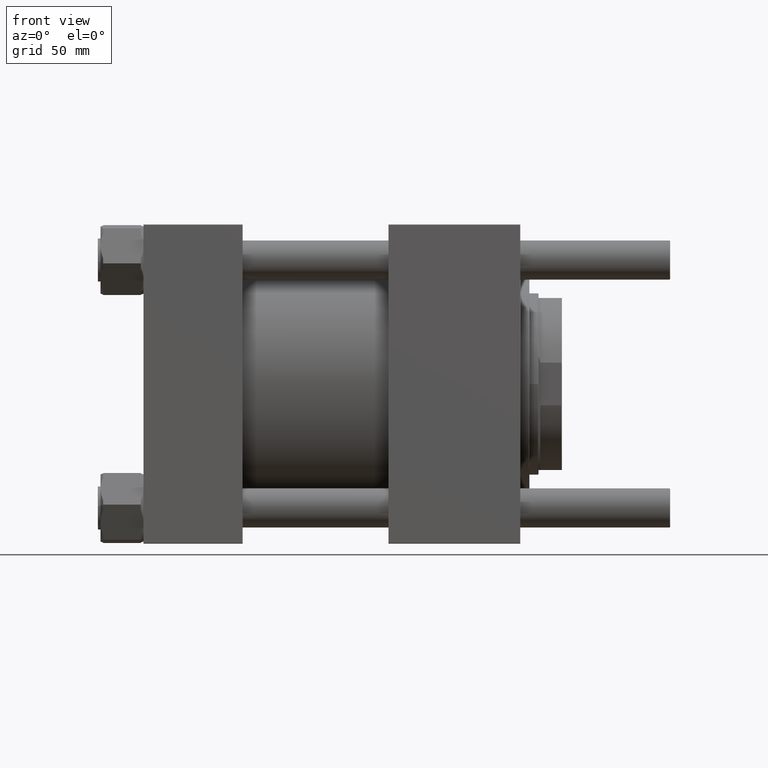
[diagram: clean part render]
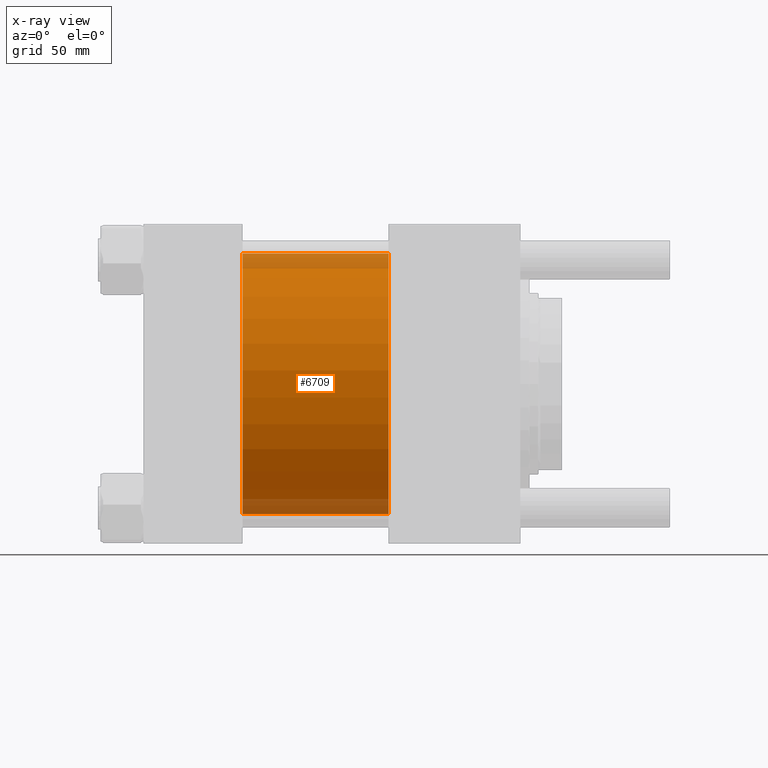
[diagram: x-ray — body ghosted, one internal face saturated and labeled with its STEP entity id]
A machine part, front view, then the same camera in x-ray: the body is ghosted and one INTERNAL B-rep face — a face not visible from any outside direction — is saturated and labeled: STEP entity #6709.
In plain terms, the highlighted cylindrical surface (partial cylindrical patch) has radius 100 mm, axis along (-1, -0, -0).
Its self-contained STEP definition (entity closure, byte-faithful):
#261 = VERTEX_POINT ( 'NONE', #8270 ) ;
#1730 = CARTESIAN_POINT ( 'NONE',  ( 188.0000000000000000, 9.644382777508321529E-15, -100.0000000000000000 ) ) ;
#3448 = DIRECTION ( 'NONE',  ( 1.000000000000000000, 0.000000000000000000, 0.000000000000000000 ) ) ;
#5511 = ORIENTED_EDGE ( 'NONE', *, *, #20193, .T. ) ;
#5540 = CARTESIAN_POINT ( 'NONE',  ( 76.00000000000000000, 9.644382777508321529E-15, -100.0000000000000000 ) ) ;
#6065 = CARTESIAN_POINT ( 'NONE',  ( 188.0000000000000000, 9.644382777508321529E-15, -100.0000000000000000 ) ) ;
#6709 = ADVANCED_FACE ( 'NONE', ( #7011 ), #51980, .F. ) ;
#7011 = FACE_OUTER_BOUND ( 'NONE', #18226, .T. ) ;
#8270 = CARTESIAN_POINT ( 'NONE',  ( 188.0000000000000000, -2.602085213965210642E-15, 100.0000000000000000 ) ) ;
#11464 = CARTESIAN_POINT ( 'NONE',  ( 76.00000000000000000, -2.602085213965210642E-15, 100.0000000000000000 ) ) ;
#11632 = ORIENTED_EDGE ( 'NONE', *, *, #15628, .F. ) ;
#12228 = DIRECTION ( 'NONE',  ( -1.000000000000000000, -0.000000000000000000, -0.000000000000000000 ) ) ;
#14499 = DIRECTION ( 'NONE',  ( 0.000000000000000000, 0.000000000000000000, -1.000000000000000000 ) ) ;
#15628 = EDGE_CURVE ( 'NONE', #261, #55386, #45542, .T. ) ;
#18226 = EDGE_LOOP ( 'NONE', ( #49856, #5511, #19923, #11632 ) ) ;
#19923 = ORIENTED_EDGE ( 'NONE', *, *, #49294, .F. ) ;
#20193 = EDGE_CURVE ( 'NONE', #20219, #43804, #23478, .T. ) ;
#20219 = VERTEX_POINT ( 'NONE', #6065 ) ;
#20340 = EDGE_CURVE ( 'NONE', #261, #20219, #50080, .T. ) ;
#20374 = DIRECTION ( 'NONE',  ( 0.000000000000000000, 0.000000000000000000, 1.000000000000000000 ) ) ;
#23478 = LINE ( 'NONE', #1730, #28794 ) ;
#28126 = DIRECTION ( 'NONE',  ( 1.000000000000000000, 0.000000000000000000, 0.000000000000000000 ) ) ;
#28794 = VECTOR ( 'NONE', #45237, 1000.000000000000000 ) ;
#28991 = CARTESIAN_POINT ( 'NONE',  ( 188.0000000000000000, -2.602085213965210642E-15, 0.000000000000000000 ) ) ;
#29702 = AXIS2_PLACEMENT_3D ( 'NONE', #28991, #3448, #51605 ) ;
#30487 = AXIS2_PLACEMENT_3D ( 'NONE', #42411, #12228, #20374 ) ;
#42411 = CARTESIAN_POINT ( 'NONE',  ( 188.0000000000000000, -2.602085213965210642E-15, 0.000000000000000000 ) ) ;
#42787 = VECTOR ( 'NONE', #49610, 1000.000000000000000 ) ;
#43413 = AXIS2_PLACEMENT_3D ( 'NONE', #53375, #28126, #14499 ) ;
#43804 = VERTEX_POINT ( 'NONE', #5540 ) ;
#45237 = DIRECTION ( 'NONE',  ( -1.000000000000000000, -0.000000000000000000, -0.000000000000000000 ) ) ;
#45542 = LINE ( 'NONE', #53959, #42787 ) ;
#49294 = EDGE_CURVE ( 'NONE', #55386, #43804, #56383, .T. ) ;
#49610 = DIRECTION ( 'NONE',  ( -1.000000000000000000, -0.000000000000000000, -0.000000000000000000 ) ) ;
#49856 = ORIENTED_EDGE ( 'NONE', *, *, #20340, .T. ) ;
#50080 = CIRCLE ( 'NONE', #29702, 100.0000000000000000 ) ;
#51605 = DIRECTION ( 'NONE',  ( 0.000000000000000000, 0.000000000000000000, -1.000000000000000000 ) ) ;
#51980 = CYLINDRICAL_SURFACE ( 'NONE', #30487, 100.0000000000000000 ) ;
#53375 = CARTESIAN_POINT ( 'NONE',  ( 76.00000000000000000, -2.602085213965210642E-15, 0.000000000000000000 ) ) ;
#53959 = CARTESIAN_POINT ( 'NONE',  ( 188.0000000000000000, -2.602085213965210642E-15, 100.0000000000000000 ) ) ;
#55386 = VERTEX_POINT ( 'NONE', #11464 ) ;
#56383 = CIRCLE ( 'NONE', #43413, 100.0000000000000000 ) ;